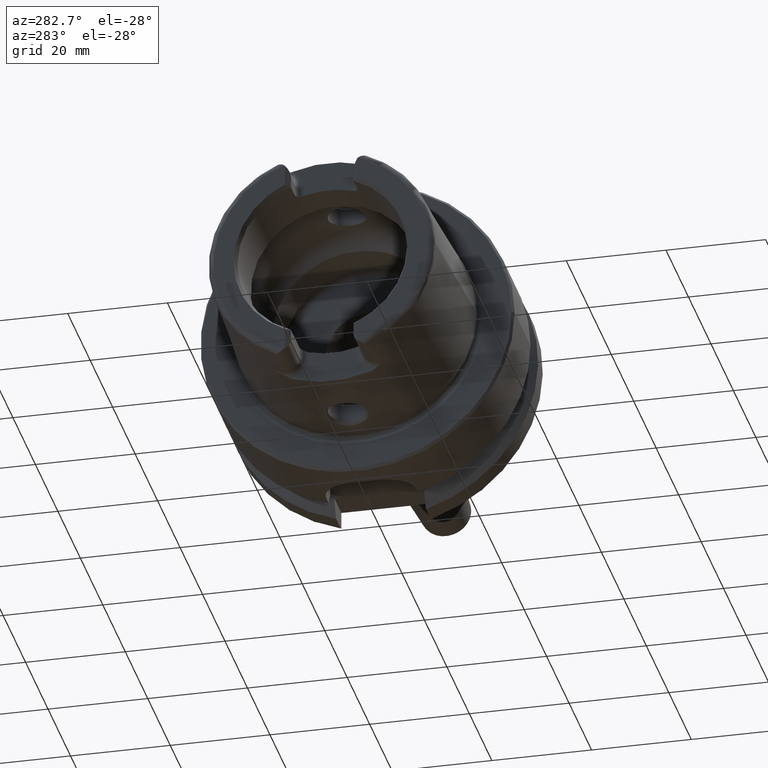
[diagram: clean part render]
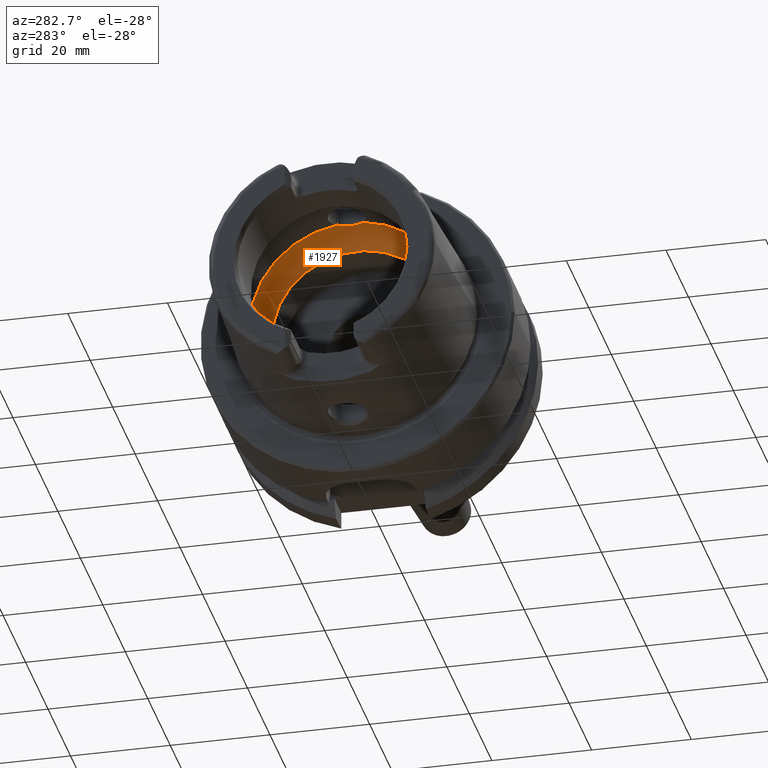
[diagram: same view with one face highlighted and labeled with its STEP entity id]
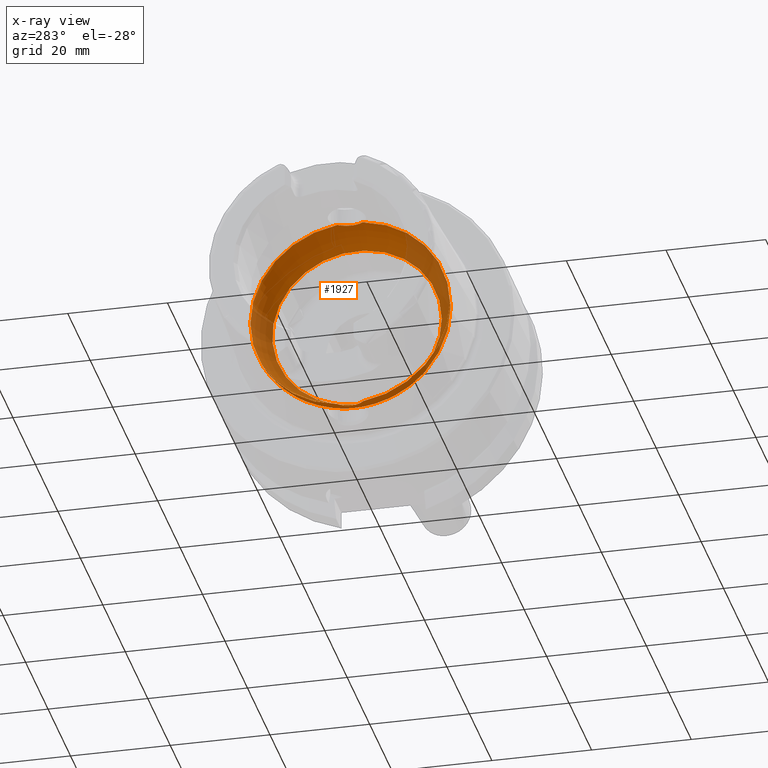
[diagram: x-ray of the same camera — body ghosted, the highlighted face saturated]
A machine part, auxiliary view. The second image highlights one B-rep face of the part: STEP entity #1927.
The next image is the same camera in x-ray: the body ghosted, the highlighted face saturated — about 32% of this face is hidden behind the body in this view.
In plain terms, the highlighted toroidal blend (fillet) surface has major radius 12 mm and minor (blend) radius 8 mm.
Its self-contained STEP definition (entity closure, byte-faithful):
#49=B_SPLINE_CURVE_WITH_KNOTS('',3,(#3391,#3392,#3393,#3394,#3395,#3396,
#3397,#3398,#3399,#3400,#3401,#3402),.UNSPECIFIED.,.F.,.F.,(4,2,2,2,2,4),
(-0.560647090003115,-0.432465132423936,-0.371738630353782,-0.32053783623797,
-0.287500355516274,-0.280385270121909),.UNSPECIFIED.);
#51=B_SPLINE_CURVE_WITH_KNOTS('',3,(#3435,#3436,#3437,#3438,#3439,#3440,
#3441,#3442,#3443,#3444),.UNSPECIFIED.,.F.,.F.,(4,2,2,2,4),(-0.280385270121909,
-0.256917987419631,-0.21744735037608,-0.138661357565599,0.),
 .UNSPECIFIED.);
#54=B_SPLINE_CURVE_WITH_KNOTS('',3,(#3560,#3561,#3562,#3563,#3564,#3565,
#3566,#3567,#3568,#3569,#3570,#3571),.UNSPECIFIED.,.F.,.F.,(4,2,2,2,2,4),
(-0.560647090003256,-0.432465132424011,-0.371738630353825,-0.32053783623799,
-0.287500355516289,-0.280385270121924),.UNSPECIFIED.);
#56=B_SPLINE_CURVE_WITH_KNOTS('',3,(#3604,#3605,#3606,#3607,#3608,#3609,
#3610,#3611,#3612,#3613),.UNSPECIFIED.,.F.,.F.,(4,2,2,2,4),(-0.280385270121924,
-0.256917987419636,-0.217447350376074,-0.138661357565593,0.),
 .UNSPECIFIED.);
#148=TOROIDAL_SURFACE('',#2108,12.,8.);
#213=FACE_OUTER_BOUND('',#330,.T.);
#330=EDGE_LOOP('',(#1422,#1423,#1424,#1425,#1426,#1427,#1428,#1429,#1430,
#1431,#1432));
#664=CIRCLE('',#2103,20.);
#667=CIRCLE('',#2106,20.);
#668=CIRCLE('',#2107,20.);
#669=CIRCLE('',#2109,17.);
#670=CIRCLE('',#2110,17.);
#671=CIRCLE('',#2111,8.);
#829=VERTEX_POINT('',#3388);
#830=VERTEX_POINT('',#3390);
#831=VERTEX_POINT('',#3403);
#834=VERTEX_POINT('',#3558);
#835=VERTEX_POINT('',#3559);
#836=VERTEX_POINT('',#3572);
#837=VERTEX_POINT('',#3616);
#840=VERTEX_POINT('',#3626);
#841=VERTEX_POINT('',#3627);
#1050=EDGE_CURVE('',#830,#829,#49,.T.);
#1052=EDGE_CURVE('',#829,#831,#51,.T.);
#1056=EDGE_CURVE('',#834,#835,#54,.T.);
#1058=EDGE_CURVE('',#835,#836,#56,.T.);
#1060=EDGE_CURVE('',#837,#834,#664,.T.);
#1064=EDGE_CURVE('',#831,#837,#667,.T.);
#1065=EDGE_CURVE('',#836,#830,#668,.T.);
#1066=EDGE_CURVE('',#840,#841,#669,.T.);
#1067=EDGE_CURVE('',#841,#840,#670,.T.);
#1068=EDGE_CURVE('',#841,#829,#671,.T.);
#1422=ORIENTED_EDGE('',*,*,#1066,.F.);
#1423=ORIENTED_EDGE('',*,*,#1067,.F.);
#1424=ORIENTED_EDGE('',*,*,#1068,.T.);
#1425=ORIENTED_EDGE('',*,*,#1052,.T.);
#1426=ORIENTED_EDGE('',*,*,#1064,.T.);
#1427=ORIENTED_EDGE('',*,*,#1060,.T.);
#1428=ORIENTED_EDGE('',*,*,#1056,.T.);
#1429=ORIENTED_EDGE('',*,*,#1058,.T.);
#1430=ORIENTED_EDGE('',*,*,#1065,.T.);
#1431=ORIENTED_EDGE('',*,*,#1050,.T.);
#1432=ORIENTED_EDGE('',*,*,#1068,.F.);
#1927=ADVANCED_FACE('',(#213),#148,.F.);
#2103=AXIS2_PLACEMENT_3D('',#3617,#2454,#2455);
#2106=AXIS2_PLACEMENT_3D('',#3623,#2461,#2462);
#2107=AXIS2_PLACEMENT_3D('',#3624,#2463,#2464);
#2108=AXIS2_PLACEMENT_3D('',#3625,#2465,#2466);
#2109=AXIS2_PLACEMENT_3D('',#3628,#2467,#2468);
#2110=AXIS2_PLACEMENT_3D('',#3629,#2469,#2470);
#2111=AXIS2_PLACEMENT_3D('',#3630,#2471,#2472);
#2454=DIRECTION('center_axis',(-1.,0.,0.));
#2455=DIRECTION('ref_axis',(0.,0.,1.));
#2461=DIRECTION('center_axis',(-1.,0.,0.));
#2462=DIRECTION('ref_axis',(0.,0.,1.));
#2463=DIRECTION('center_axis',(-1.,0.,0.));
#2464=DIRECTION('ref_axis',(0.,0.,1.));
#2465=DIRECTION('center_axis',(-1.,0.,0.));
#2466=DIRECTION('ref_axis',(0.,0.,1.));
#2467=DIRECTION('center_axis',(-1.,0.,0.));
#2468=DIRECTION('ref_axis',(0.,0.,1.));
#2469=DIRECTION('center_axis',(-1.,0.,0.));
#2470=DIRECTION('ref_axis',(0.,0.,1.));
#2471=DIRECTION('center_axis',(0.,1.,-1.22464679914735E-16));
#2472=DIRECTION('ref_axis',(0.,-1.22464679914735E-16,-1.));
#3388=CARTESIAN_POINT('',(-5.25,3.07683831259085E-16,-19.9378825251564));
#3390=CARTESIAN_POINT('',(-6.2449979983984,2.54410376580264,-19.8375284758165));
#3391=CARTESIAN_POINT('Ctrl Pts',(-6.2449979983984,2.54410376580263,-19.8375284758165));
#3392=CARTESIAN_POINT('Ctrl Pts',(-5.9563832733696,2.23156378381208,-19.877610794847));
#3393=CARTESIAN_POINT('Ctrl Pts',(-5.72238184052007,1.87139505615745,-19.9007586679726));
#3394=CARTESIAN_POINT('Ctrl Pts',(-5.47415257397377,1.29299577523533,-19.9221291461079));
#3395=CARTESIAN_POINT('Ctrl Pts',(-5.40951125063364,1.10084807786171,-19.9269865934584));
#3396=CARTESIAN_POINT('Ctrl Pts',(-5.31953029252225,0.738763665580492,-19.9333991732415));
#3397=CARTESIAN_POINT('Ctrl Pts',(-5.28971989928313,0.57048989328573,-19.9353426103026));
#3398=CARTESIAN_POINT('Ctrl Pts',(-5.25970604483208,0.291260075331645,-19.9372753146995));
#3399=CARTESIAN_POINT('Ctrl Pts',(-5.25276504295341,0.181279004510485,-19.9377089305339));
#3400=CARTESIAN_POINT('Ctrl Pts',(-5.25022501552319,0.0474369436209427,
-19.9378684144199));
#3401=CARTESIAN_POINT('Ctrl Pts',(-5.25,0.0237178817918345,-19.9378825251564));
#3402=CARTESIAN_POINT('Ctrl Pts',(-5.25,1.73633857888389E-16,-19.9378825251564));
#3403=CARTESIAN_POINT('',(-6.2449979983984,-2.54410376580264,-19.8375284758165));
#3435=CARTESIAN_POINT('Ctrl Pts',(-5.25,1.73633857888389E-16,-19.9378825251564));
#3436=CARTESIAN_POINT('Ctrl Pts',(-5.25,-0.0782273446147222,-19.9378825251564));
#3437=CARTESIAN_POINT('Ctrl Pts',(-5.25244785081342,-0.15644185230388,-19.9377296492436));
#3438=CARTESIAN_POINT('Ctrl Pts',(-5.26557067654327,-0.365860616871457,
-19.9368989370107));
#3439=CARTESIAN_POINT('Ctrl Pts',(-5.2807081654794,-0.496671474530444,-19.9359382432917));
#3440=CARTESIAN_POINT('Ctrl Pts',(-5.34656166936447,-0.885366242555149,
-19.9315392091305));
#3441=CARTESIAN_POINT('Ctrl Pts',(-5.41752174824152,-1.13897710923821,-19.9266508951874));
#3442=CARTESIAN_POINT('Ctrl Pts',(-5.68473945553282,-1.81246400136134,-19.9044561094296));
#3443=CARTESIAN_POINT('Ctrl Pts',(-5.93280828188796,-2.20603449935731,-19.880884849314));
#3444=CARTESIAN_POINT('Ctrl Pts',(-6.2449979983984,-2.54410376580263,-19.8375284758165));
#3558=CARTESIAN_POINT('',(-6.2449979983984,-2.54410376580264,19.8375284758165));
#3559=CARTESIAN_POINT('',(-5.25,4.81156178856766E-16,19.9378825251564));
#3560=CARTESIAN_POINT('Ctrl Pts',(-6.2449979983984,-2.54410376580264,19.8375284758165));
#3561=CARTESIAN_POINT('Ctrl Pts',(-5.9563832733696,-2.23156378381209,19.877610794847));
#3562=CARTESIAN_POINT('Ctrl Pts',(-5.72238184052007,-1.87139505615746,19.9007586679726));
#3563=CARTESIAN_POINT('Ctrl Pts',(-5.47415257397376,-1.29299577523533,19.9221291461079));
#3564=CARTESIAN_POINT('Ctrl Pts',(-5.40951125063363,-1.10084807786172,19.9269865934584));
#3565=CARTESIAN_POINT('Ctrl Pts',(-5.31953029252225,-0.738763665580501,
19.9333991732415));
#3566=CARTESIAN_POINT('Ctrl Pts',(-5.28971989928313,-0.570489893285745,
19.9353426103026));
#3567=CARTESIAN_POINT('Ctrl Pts',(-5.25970604483207,-0.291260075331669,
19.9372753146995));
#3568=CARTESIAN_POINT('Ctrl Pts',(-5.2527650429534,-0.181279004510531,19.9377089305339));
#3569=CARTESIAN_POINT('Ctrl Pts',(-5.25022501552319,-0.0474369436209401,
19.9378684144199));
#3570=CARTESIAN_POINT('Ctrl Pts',(-5.25,-0.0237178817918311,19.9378825251564));
#3571=CARTESIAN_POINT('Ctrl Pts',(-5.25,5.15920899939407E-16,19.9378825251564));
#3572=CARTESIAN_POINT('',(-6.2449979983984,2.54410376580264,19.8375284758165));
#3604=CARTESIAN_POINT('Ctrl Pts',(-5.25,5.15920899939407E-16,19.9378825251564));
#3605=CARTESIAN_POINT('Ctrl Pts',(-5.25,0.0782273446147462,19.9378825251564));
#3606=CARTESIAN_POINT('Ctrl Pts',(-5.25244785081342,0.156441852303891,19.9377296492436));
#3607=CARTESIAN_POINT('Ctrl Pts',(-5.26557067654326,0.36586061687142,19.9368989370107));
#3608=CARTESIAN_POINT('Ctrl Pts',(-5.28070816547939,0.496671474530425,19.9359382432917));
#3609=CARTESIAN_POINT('Ctrl Pts',(-5.34656166936446,0.885366242555101,19.9315392091305));
#3610=CARTESIAN_POINT('Ctrl Pts',(-5.41752174824151,1.13897710923819,19.9266508951874));
#3611=CARTESIAN_POINT('Ctrl Pts',(-5.68473945553283,1.81246400136138,19.9044561094296));
#3612=CARTESIAN_POINT('Ctrl Pts',(-5.93280828188797,2.20603449935733,19.880884849314));
#3613=CARTESIAN_POINT('Ctrl Pts',(-6.2449979983984,2.54410376580264,19.8375284758165));
#3616=CARTESIAN_POINT('',(-6.2449979983984,-20.,2.44929359829471E-15));
#3617=CARTESIAN_POINT('Origin',(-6.2449979983984,0.,0.));
#3623=CARTESIAN_POINT('Origin',(-6.2449979983984,0.,0.));
#3624=CARTESIAN_POINT('Origin',(-6.2449979983984,0.,0.));
#3625=CARTESIAN_POINT('Origin',(-6.2449979983984,0.,0.));
#3626=CARTESIAN_POINT('',(0.,-17.,2.0818995585505E-15));
#3627=CARTESIAN_POINT('',(0.,-2.0818995585505E-15,-17.));
#3628=CARTESIAN_POINT('Origin',(0.,0.,0.));
#3629=CARTESIAN_POINT('Origin',(0.,0.,0.));
#3630=CARTESIAN_POINT('Origin',(-6.2449979983984,-1.46957615897682E-15,
-12.));